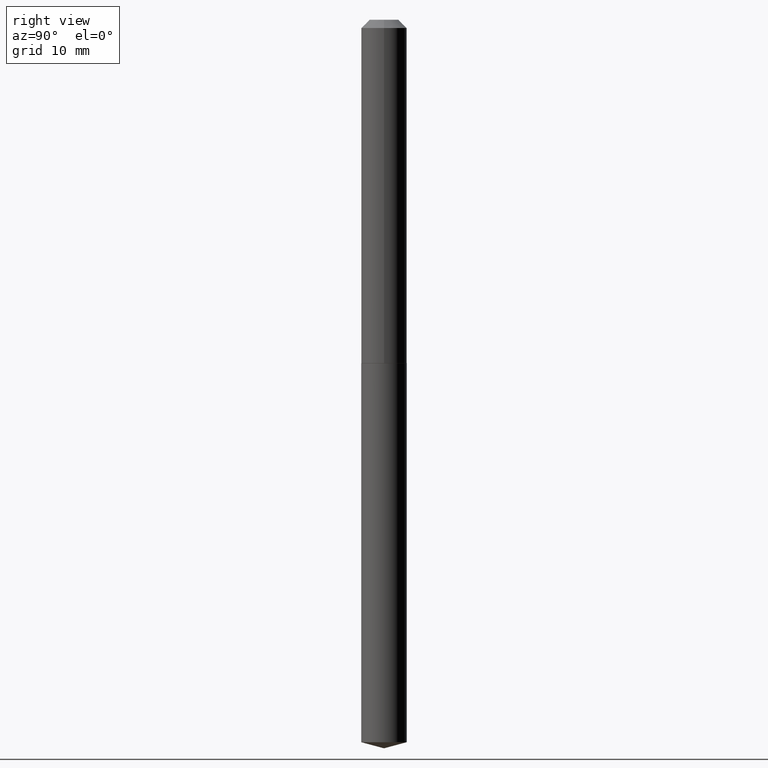
[diagram: clean part render]
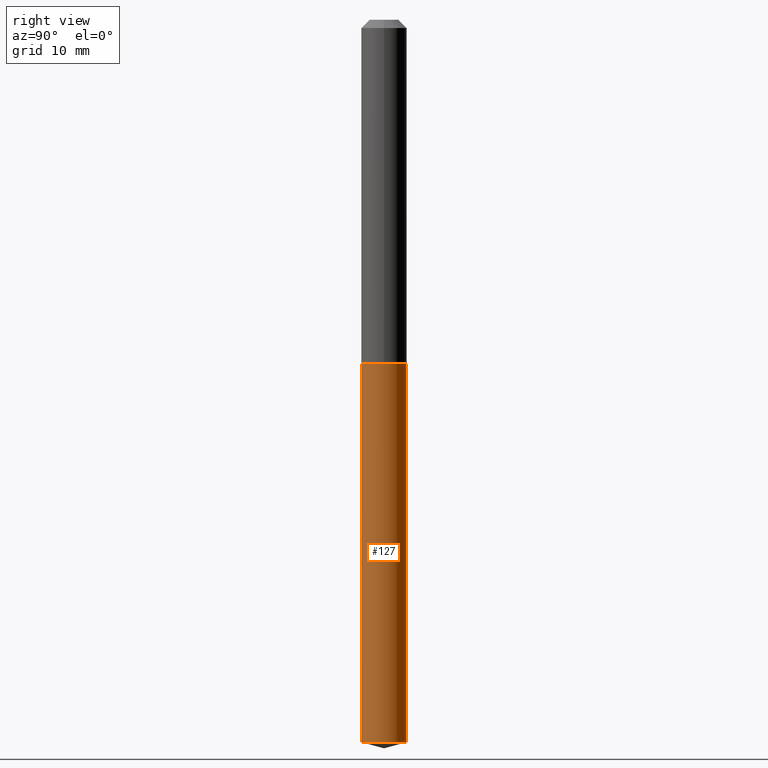
[diagram: same view with one face highlighted and labeled with its STEP entity id]
A machine part, right view. The second image highlights one B-rep face of the part: STEP entity #127.
In plain terms, the highlighted cylindrical surface (edge-blend (fillet) strip) has radius 2.1831 mm, axis along (-0, 0, 1).
Its self-contained STEP definition (entity closure, byte-faithful):
#3 = CIRCLE ( 'NONE', #52, 0.08594999999999998475 ) ;
#24 = EDGE_CURVE ( 'NONE', #247, #129, #258, .T. ) ;
#34 = CYLINDRICAL_SURFACE ( 'NONE', #367, 0.08594999999999998475 ) ;
#40 = EDGE_CURVE ( 'NONE', #246, #247, #227, .T. ) ;
#52 = AXIS2_PLACEMENT_3D ( 'NONE', #58, #385, #298 ) ;
#58 = CARTESIAN_POINT ( 'NONE',  ( 6.668663791983697040E-29, -9.521243830365720822E-15, -2.726969766910545268 ) ) ;
#69 = DIRECTION ( 'NONE',  ( -6.982962677686266711E-15, -1.000000000000000000, 3.178415350394722068E-15 ) ) ;
#99 = ORIENTED_EDGE ( 'NONE', *, *, #290, .T. ) ;
#100 = DIRECTION ( 'NONE',  ( -2.445429851158407502E-29, 3.491537124658603539E-15, 1.000000000000000000 ) ) ;
#103 = EDGE_CURVE ( 'NONE', #246, #219, #3, .T. ) ;
#109 = DIRECTION ( 'NONE',  ( -2.445429851158407502E-29, 3.491537124658603934E-15, 1.000000000000000000 ) ) ;
#125 = ORIENTED_EDGE ( 'NONE', *, *, #24, .F. ) ;
#127 = ADVANCED_FACE ( 'NONE', ( #244 ), #34, .T. ) ;
#129 = VERTEX_POINT ( 'NONE', #315 ) ;
#131 = DIRECTION ( 'NONE',  ( -2.445429851158407502E-29, 3.491537124658603539E-15, 1.000000000000000000 ) ) ;
#150 = ORIENTED_EDGE ( 'NONE', *, *, #40, .F. ) ;
#157 = LINE ( 'NONE', #253, #380 ) ;
#169 = EDGE_LOOP ( 'NONE', ( #387, #99, #125, #150 ) ) ;
#185 = AXIS2_PLACEMENT_3D ( 'NONE', #231, #109, #69 ) ;
#212 = CARTESIAN_POINT ( 'NONE',  ( -6.001856421471028690E-16, -0.08595000000000450890, -1.296899999999999498 ) ) ;
#219 = VERTEX_POINT ( 'NONE', #382 ) ;
#227 = LINE ( 'NONE', #310, #304 ) ;
#231 = CARTESIAN_POINT ( 'NONE',  ( 3.171528494741502879E-29, -4.528102148345674239E-15, -1.296899999999999720 ) ) ;
#236 = DIRECTION ( 'NONE',  ( -6.982962677686266711E-15, -1.000000000000000000, 3.178415350394722068E-15 ) ) ;
#244 = FACE_OUTER_BOUND ( 'NONE', #169, .T. ) ;
#246 = VERTEX_POINT ( 'NONE', #293 ) ;
#247 = VERTEX_POINT ( 'NONE', #212 ) ;
#253 = CARTESIAN_POINT ( 'NONE',  ( 6.107114813858375558E-16, 0.08594999999999546059, -1.296899999999999942 ) ) ;
#258 = CIRCLE ( 'NONE', #185, 0.08594999999999998475 ) ;
#265 = DIRECTION ( 'NONE',  ( -2.445429851158407502E-29, 3.491537124658603934E-15, 1.000000000000000000 ) ) ;
#288 = CARTESIAN_POINT ( 'NONE',  ( 3.171528494741502879E-29, -4.528102148345674239E-15, -1.296899999999999720 ) ) ;
#290 = EDGE_CURVE ( 'NONE', #219, #129, #157, .T. ) ;
#293 = CARTESIAN_POINT ( 'NONE',  ( -6.001856421470678633E-16, -0.08595000000000954654, -2.726969766910544823 ) ) ;
#298 = DIRECTION ( 'NONE',  ( -6.982962677686266711E-15, -1.000000000000000000, 6.356830700789444137E-15 ) ) ;
#304 = VECTOR ( 'NONE', #131, 39.37007874015748143 ) ;
#310 = CARTESIAN_POINT ( 'NONE',  ( -6.001856421471028690E-16, -0.08595000000000450890, -1.296899999999999498 ) ) ;
#315 = CARTESIAN_POINT ( 'NONE',  ( 6.107114813858728573E-16, 0.08594999999999546059, -1.296899999999999942 ) ) ;
#367 = AXIS2_PLACEMENT_3D ( 'NONE', #288, #265, #236 ) ;
#380 = VECTOR ( 'NONE', #100, 39.37007874015748143 ) ;
#382 = CARTESIAN_POINT ( 'NONE',  ( 6.107114813858730545E-16, 0.08594999999999047846, -2.726969766910545712 ) ) ;
#385 = DIRECTION ( 'NONE',  ( -2.445429851158407502E-29, 3.491537124658603934E-15, 1.000000000000000000 ) ) ;
#387 = ORIENTED_EDGE ( 'NONE', *, *, #103, .T. ) ;